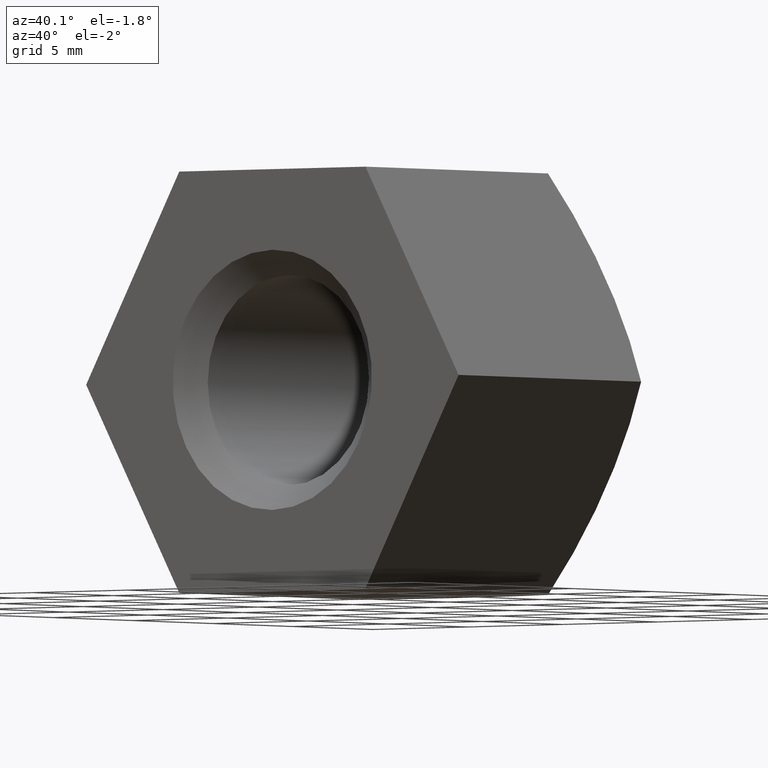
[diagram: clean part render]
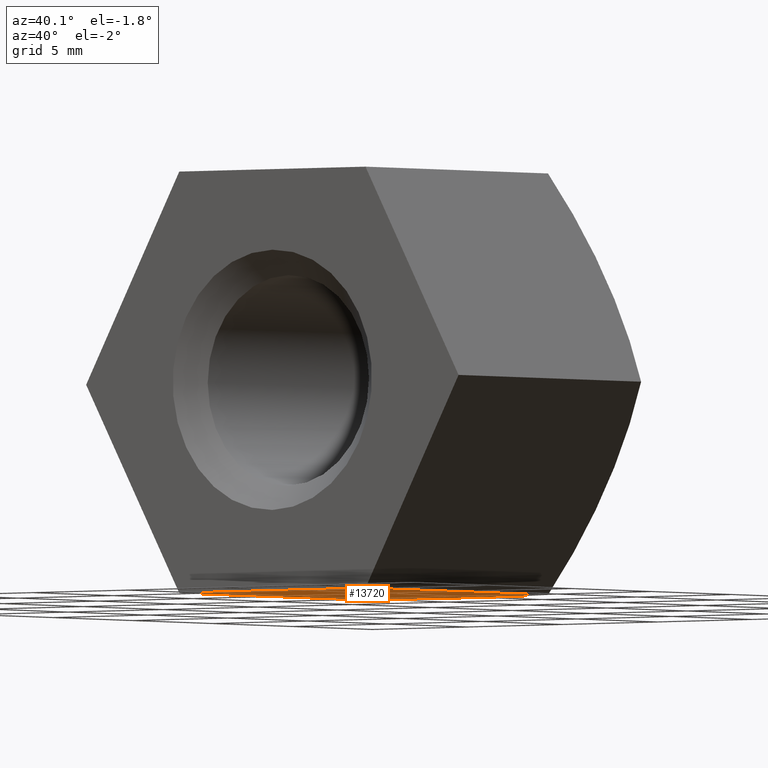
[diagram: same view with one face highlighted and labeled with its STEP entity id]
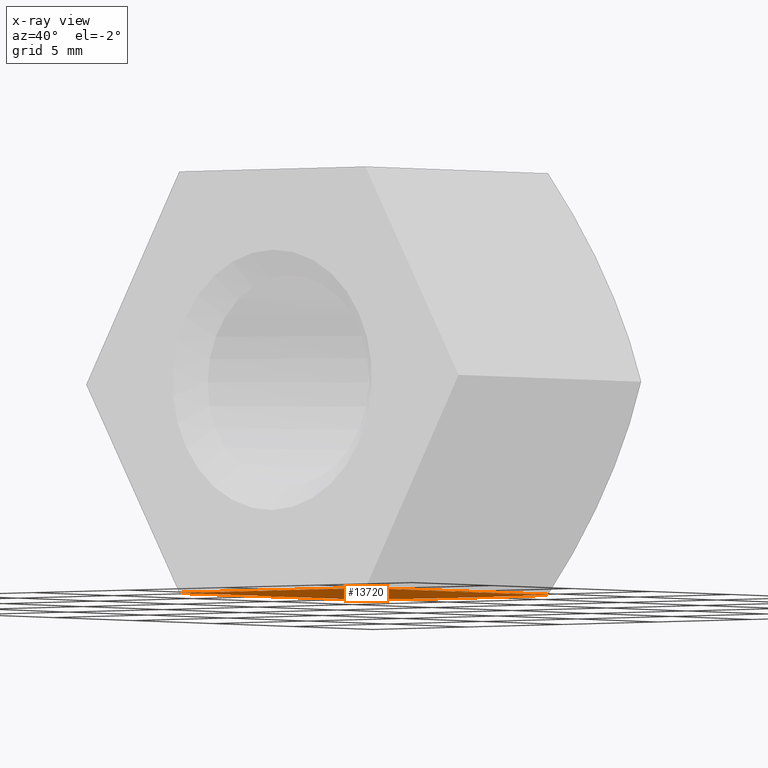
[diagram: x-ray of the same camera — body ghosted, the highlighted face saturated]
A machine part, auxiliary view. The second image highlights one B-rep face of the part: STEP entity #13720.
The next image is the same camera in x-ray: the body ghosted, the highlighted face saturated — about 0% of this face is hidden behind the body in this view.
In plain terms, the highlighted planar face has unit normal (0, -0, 1).
Its self-contained STEP definition (entity closure, byte-faithful):
#10 = AXIS2_PLACEMENT_3D ( 'NONE', #13376, #14523, #6484 ) ;
#131 = LINE ( 'NONE', #4355, #9715 ) ;
#676 = CARTESIAN_POINT ( 'NONE',  ( 4.907477288111816272, 14.00000000000000000, -8.500000000000001776 ) ) ;
#1445 = DIRECTION ( 'NONE',  ( 1.000000000000000000, 0.000000000000000000, -0.000000000000000000 ) ) ;
#1536 = VECTOR ( 'NONE', #4122, 1000.000000000000000 ) ;
#1608 = FACE_OUTER_BOUND ( 'NONE', #1611, .T. ) ;
#1611 = EDGE_LOOP ( 'NONE', ( #6857, #4171, #2930, #1789 ) ) ;
#1714 = CARTESIAN_POINT ( 'NONE',  ( -4.907477288111815383, 11.42603416347697731, -8.500000000000001776 ) ) ;
#1789 = ORIENTED_EDGE ( 'NONE', *, *, #12521, .T. ) ;
#2230 = CARTESIAN_POINT ( 'NONE',  ( 4.907477288111816272, 0.000000000000000000, -8.500000000000001776 ) ) ;
#2619 = DIRECTION ( 'NONE',  ( 0.000000000000000000, -0.000000000000000000, 1.000000000000000000 ) ) ;
#2930 = ORIENTED_EDGE ( 'NONE', *, *, #3399, .T. ) ;
#3199 = VERTEX_POINT ( 'NONE', #5483 ) ;
#3355 = CARTESIAN_POINT ( 'NONE',  ( -4.907477288111819824, 0.000000000000000000, -8.500000000000001776 ) ) ;
#3399 = EDGE_CURVE ( 'NONE', #3199, #10839, #10952, .T. ) ;
#4122 = DIRECTION ( 'NONE',  ( -0.000000000000000000, -1.000000000000000000, -0.000000000000000000 ) ) ;
#4171 = ORIENTED_EDGE ( 'NONE', *, *, #11563, .T. ) ;
#4271 = AXIS2_PLACEMENT_3D ( 'NONE', #12835, #2619, #1445 ) ;
#4355 = CARTESIAN_POINT ( 'NONE',  ( 4.907477288111816272, 0.000000000000000000, -8.500000000000001776 ) ) ;
#4763 = DIRECTION ( 'NONE',  ( -0.000000000000000000, -1.000000000000000000, -0.000000000000000000 ) ) ;
#5294 = VERTEX_POINT ( 'NONE', #1714 ) ;
#5483 = CARTESIAN_POINT ( 'NONE',  ( 4.907477288111817160, 11.42603416347697731, -8.500000000000001776 ) ) ;
#6484 = DIRECTION ( 'NONE',  ( 1.000000000000000000, 7.090724721494490785E-15, 0.000000000000000000 ) ) ;
#6548 = VECTOR ( 'NONE', #4763, 1000.000000000000000 ) ;
#6857 = ORIENTED_EDGE ( 'NONE', *, *, #8823, .F. ) ;
#7047 = PLANE ( 'NONE',  #4271 ) ;
#8823 = EDGE_CURVE ( 'NONE', #5294, #12482, #14006, .T. ) ;
#9715 = VECTOR ( 'NONE', #10001, 1000.000000000000000 ) ;
#10001 = DIRECTION ( 'NONE',  ( -1.000000000000000000, 0.000000000000000000, 0.000000000000000000 ) ) ;
#10098 = CIRCLE ( 'NONE', #10, 18.10386699023166557 ) ;
#10839 = VERTEX_POINT ( 'NONE', #2230 ) ;
#10952 = LINE ( 'NONE', #676, #1536 ) ;
#11563 = EDGE_CURVE ( 'NONE', #5294, #3199, #10098, .T. ) ;
#12482 = VERTEX_POINT ( 'NONE', #3355 ) ;
#12521 = EDGE_CURVE ( 'NONE', #10839, #12482, #131, .T. ) ;
#12649 = CARTESIAN_POINT ( 'NONE',  ( -4.907477288111819824, 14.00000000000000000, -8.500000000000001776 ) ) ;
#12835 = CARTESIAN_POINT ( 'NONE',  ( 4.907477288111816272, 14.00000000000000000, -8.500000000000001776 ) ) ;
#13376 = CARTESIAN_POINT ( 'NONE',  ( 0.000000000000000000, -6.000000000000000000, -8.500000000000001776 ) ) ;
#13720 = ADVANCED_FACE ( 'NONE', ( #1608 ), #7047, .F. ) ;
#14006 = LINE ( 'NONE', #12649, #6548 ) ;
#14523 = DIRECTION ( 'NONE',  ( -0.000000000000000000, 0.000000000000000000, -1.000000000000000000 ) ) ;